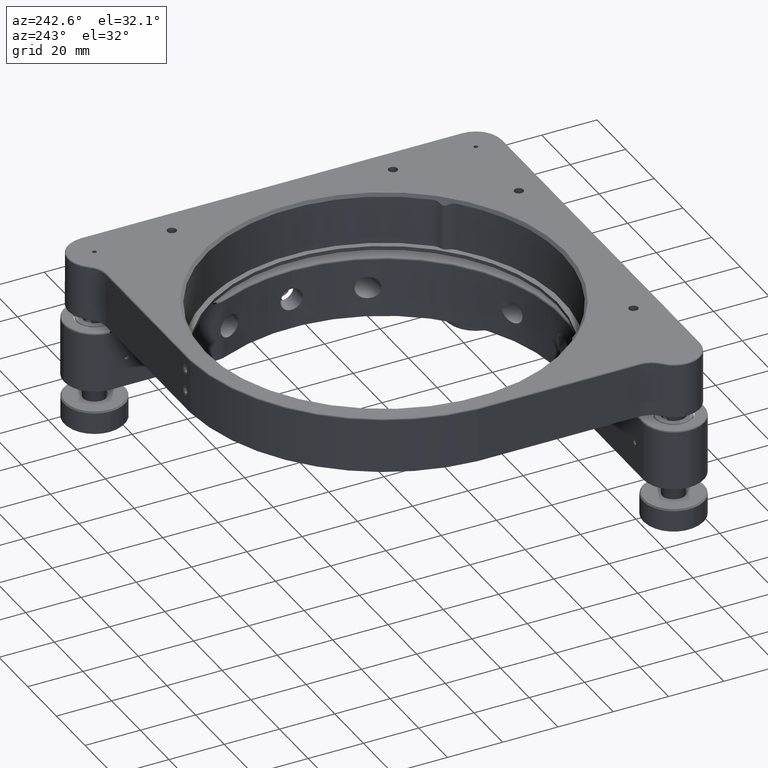
[diagram: clean part render]
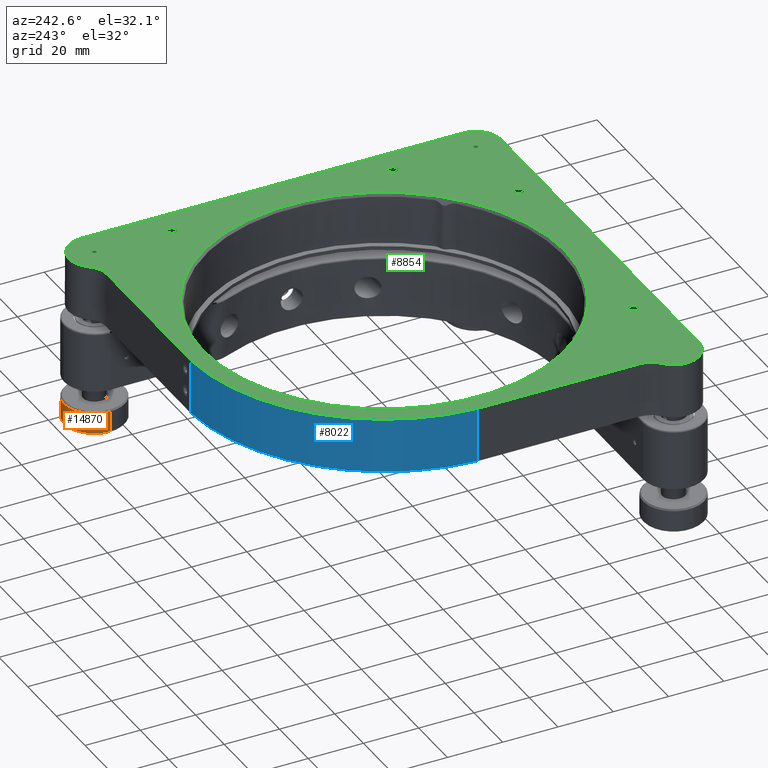
[diagram: same view with three faces highlighted in distinct colors, each labeled with its STEP entity id]
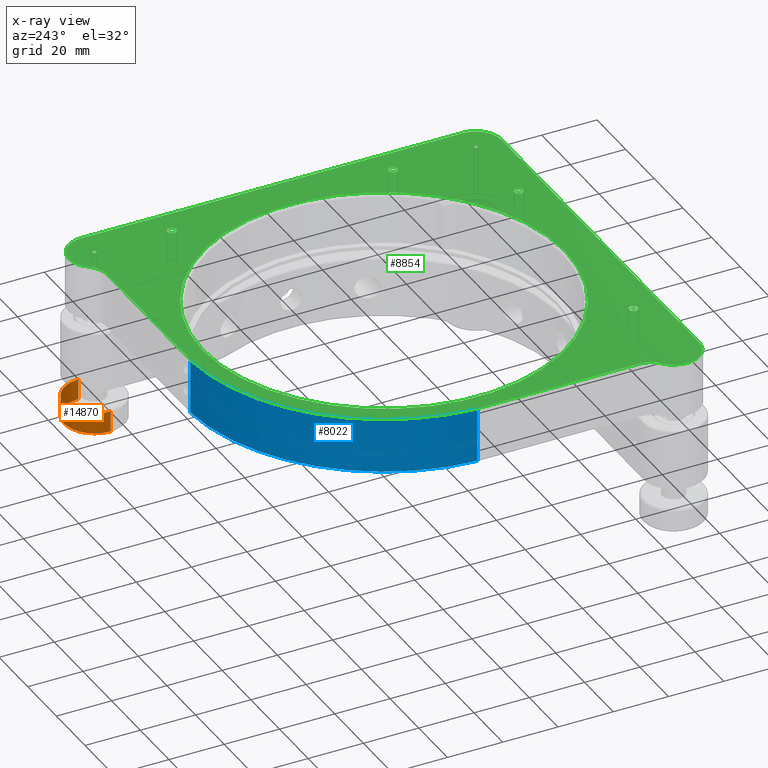
[diagram: x-ray of the same camera — body ghosted, the three highlighted faces saturated]
A machine part, auxiliary view with three faces highlighted in distinct colors.
The next image is the same camera in x-ray (body ghosted, the three faces saturated) — at least one of them is partly hidden behind the body in this view.
Their STEP definitions:

[orange] entity #14870 — the highlighted cylindrical surface (edge-blend (fillet) strip) has radius 11 mm, axis along (0, -0, -1).
#68 = CYLINDRICAL_SURFACE ( 'NONE', #17486, 10.99999999999999822 ) ;
#1095 = EDGE_CURVE ( 'NONE', #4155, #5146, #9262, .T. ) ;
#1386 = CARTESIAN_POINT ( 'NONE',  ( 69.00000000000001421, 69.00000000000001421, -18.60050506338832221 ) ) ;
#1794 = CARTESIAN_POINT ( 'NONE',  ( 69.00000000000001421, 69.00000000000001421, -19.10050506338831511 ) ) ;
#2815 = EDGE_CURVE ( 'NONE', #8294, #4766, #15045, .T. ) ;
#3646 = CARTESIAN_POINT ( 'NONE',  ( 79.99944176882812030, 69.11081865438603700, -18.60050506338832221 ) ) ;
#4155 = VERTEX_POINT ( 'NONE', #18198 ) ;
#4163 = VECTOR ( 'NONE', #17066, 1000.000000000000000 ) ;
#4766 = VERTEX_POINT ( 'NONE', #9754 ) ;
#5146 = VERTEX_POINT ( 'NONE', #10869 ) ;
#5520 = EDGE_CURVE ( 'NONE', #4766, #5146, #12823, .T. ) ;
#5531 = EDGE_CURVE ( 'NONE', #4155, #8294, #15246, .T. ) ;
#5772 = ORIENTED_EDGE ( 'NONE', *, *, #5531, .T. ) ;
#5856 = CARTESIAN_POINT ( 'NONE',  ( 69.00000000000001421, 69.00000000000001421, -26.60050506338831866 ) ) ;
#5916 = AXIS2_PLACEMENT_3D ( 'NONE', #5856, #10275, #15945 ) ;
#7330 = DIRECTION ( 'NONE',  ( -0.9999492517116447265, -0.01007442312600147737, 0.000000000000000000 ) ) ;
#8294 = VERTEX_POINT ( 'NONE', #11284 ) ;
#9262 = LINE ( 'NONE', #14132, #4163 ) ;
#9754 = CARTESIAN_POINT ( 'NONE',  ( 79.99944176882812030, 69.11081865438603700, -26.60050506338831866 ) ) ;
#10275 = DIRECTION ( 'NONE',  ( -9.708507162879141658E-50, 1.405738883550587099E-50, 1.000000000000000000 ) ) ;
#10334 = ORIENTED_EDGE ( 'NONE', *, *, #5520, .T. ) ;
#10476 = DIRECTION ( 'NONE',  ( 9.708507162879141658E-50, -1.405738883550587099E-50, -1.000000000000000000 ) ) ;
#10869 = CARTESIAN_POINT ( 'NONE',  ( 58.00055823117192944, 68.88918134561400564, -26.60050506338831866 ) ) ;
#11284 = CARTESIAN_POINT ( 'NONE',  ( 79.99944176882810609, 69.11081865438603700, -19.10050506338831511 ) ) ;
#11389 = VECTOR ( 'NONE', #16839, 1000.000000000000000 ) ;
#12059 = ORIENTED_EDGE ( 'NONE', *, *, #2815, .T. ) ;
#12823 = CIRCLE ( 'NONE', #5916, 11.00000000000000533 ) ;
#14132 = CARTESIAN_POINT ( 'NONE',  ( 58.00055823117192944, 68.88918134561400564, -18.60050506338832221 ) ) ;
#14493 = DIRECTION ( 'NONE',  ( 9.708507162879141658E-50, -1.405738883550587099E-50, -1.000000000000000000 ) ) ;
#14796 = ORIENTED_EDGE ( 'NONE', *, *, #1095, .F. ) ;
#14870 = ADVANCED_FACE ( 'NONE', ( #17420 ), #68, .T. ) ;
#15045 = LINE ( 'NONE', #3646, #11389 ) ;
#15246 = CIRCLE ( 'NONE', #16766, 11.00000000000000533 ) ;
#15705 = EDGE_LOOP ( 'NONE', ( #5772, #12059, #10334, #14796 ) ) ;
#15945 = DIRECTION ( 'NONE',  ( 0.9999492517116447265, 0.01007442312600147043, 0.000000000000000000 ) ) ;
#16766 = AXIS2_PLACEMENT_3D ( 'NONE', #1794, #10476, #17356 ) ;
#16839 = DIRECTION ( 'NONE',  ( 9.708507162879141658E-50, -1.405738883550587099E-50, -1.000000000000000000 ) ) ;
#17066 = DIRECTION ( 'NONE',  ( 9.708507162879141658E-50, -1.405738883550587099E-50, -1.000000000000000000 ) ) ;
#17356 = DIRECTION ( 'NONE',  ( 0.9999492517116447265, 0.01007442312600147043, 0.000000000000000000 ) ) ;
#17420 = FACE_OUTER_BOUND ( 'NONE', #15705, .T. ) ;
#17486 = AXIS2_PLACEMENT_3D ( 'NONE', #1386, #14493, #7330 ) ;
#18198 = CARTESIAN_POINT ( 'NONE',  ( 58.00055823117193654, 68.88918134561400564, -19.10050506338831511 ) ) ;

[blue] entity #8022 — the highlighted cylindrical surface (partial cylindrical patch) has radius 72 mm, axis along (0, -0, 1).
#100 = DIRECTION ( 'NONE',  ( -6.383782391594642219E-16, 1.000000000000000000, 0.000000000000000000 ) ) ;
#293 = CARTESIAN_POINT ( 'NONE',  ( -2.775557525048464433E-14, -5.551115123125781440E-14, 15.64949493661167423 ) ) ;
#318 = EDGE_LOOP ( 'NONE', ( #5789, #11211, #17670, #8930 ) ) ;
#569 = LINE ( 'NONE', #16419, #1004 ) ;
#1004 = VECTOR ( 'NONE', #9249, 1000.000000000000000 ) ;
#1134 = CARTESIAN_POINT ( 'NONE',  ( -3.500000000000110578, 71.91488024046253713, 35.14949493661170266 ) ) ;
#1251 = VERTEX_POINT ( 'NONE', #1134 ) ;
#1534 = VERTEX_POINT ( 'NONE', #14985 ) ;
#1762 = DIRECTION ( 'NONE',  ( 1.460576560598800264E-21, -4.173910643867654953E-36, 1.000000000000000000 ) ) ;
#1859 = DIRECTION ( 'NONE',  ( -6.383782391594641233E-16, 1.000000000000000000, 0.000000000000000000 ) ) ;
#1997 = CIRCLE ( 'NONE', #11939, 72.00000000000062528 ) ;
#2171 = CIRCLE ( 'NONE', #9410, 72.00000000000062528 ) ;
#3122 = AXIS2_PLACEMENT_3D ( 'NONE', #8939, #1762, #1859 ) ;
#3366 = CARTESIAN_POINT ( 'NONE',  ( -71.91488024046262240, 3.499999999999932498, 35.14949493661170266 ) ) ;
#4598 = FACE_OUTER_BOUND ( 'NONE', #318, .T. ) ;
#5479 = EDGE_CURVE ( 'NONE', #1534, #10999, #1997, .T. ) ;
#5789 = ORIENTED_EDGE ( 'NONE', *, *, #7545, .F. ) ;
#7296 = LINE ( 'NONE', #11456, #16992 ) ;
#7452 = DIRECTION ( 'NONE',  ( 1.460576560598800264E-21, -4.173910643867654953E-36, 1.000000000000000000 ) ) ;
#7545 = EDGE_CURVE ( 'NONE', #1534, #1251, #569, .T. ) ;
#8022 = ADVANCED_FACE ( 'NONE', ( #4598 ), #16111, .T. ) ;
#8051 = VERTEX_POINT ( 'NONE', #3366 ) ;
#8227 = CARTESIAN_POINT ( 'NONE',  ( -71.91488024046262240, 3.499999999999932498, 15.64949493661167423 ) ) ;
#8930 = ORIENTED_EDGE ( 'NONE', *, *, #17503, .T. ) ;
#8939 = CARTESIAN_POINT ( 'NONE',  ( -2.775557561562890089E-14, -5.551115123125781440E-14, 15.39949493661167246 ) ) ;
#9249 = DIRECTION ( 'NONE',  ( 1.460576560598800264E-21, -4.173910643867654953E-36, 1.000000000000000000 ) ) ;
#9410 = AXIS2_PLACEMENT_3D ( 'NONE', #10540, #15245, #18078 ) ;
#10540 = CARTESIAN_POINT ( 'NONE',  ( -2.775554676924171075E-14, -5.551115123125781440E-14, 35.14949493661170266 ) ) ;
#10999 = VERTEX_POINT ( 'NONE', #8227 ) ;
#11211 = ORIENTED_EDGE ( 'NONE', *, *, #5479, .T. ) ;
#11456 = CARTESIAN_POINT ( 'NONE',  ( -71.91488024046262240, 3.499999999999932498, 15.39949493661167246 ) ) ;
#11939 = AXIS2_PLACEMENT_3D ( 'NONE', #293, #7452, #100 ) ;
#12151 = EDGE_CURVE ( 'NONE', #10999, #8051, #7296, .T. ) ;
#14985 = CARTESIAN_POINT ( 'NONE',  ( -3.500000000000110578, 71.91488024046253713, 15.64949493661167423 ) ) ;
#15245 = DIRECTION ( 'NONE',  ( -1.460576560598800264E-21, 4.173910643867654953E-36, -1.000000000000000000 ) ) ;
#16111 = CYLINDRICAL_SURFACE ( 'NONE', #3122, 72.00000000000062528 ) ;
#16419 = CARTESIAN_POINT ( 'NONE',  ( -3.500000000000110578, 71.91488024046253713, 15.39949493661167246 ) ) ;
#16992 = VECTOR ( 'NONE', #17477, 1000.000000000000000 ) ;
#17477 = DIRECTION ( 'NONE',  ( 1.460576560598800264E-21, -4.173910643867654953E-36, 1.000000000000000000 ) ) ;
#17503 = EDGE_CURVE ( 'NONE', #8051, #1251, #2171, .T. ) ;
#17670 = ORIENTED_EDGE ( 'NONE', *, *, #12151, .T. ) ;
#18078 = DIRECTION ( 'NONE',  ( 2.026157019940911081E-15, 1.000000000000000000, 0.000000000000000000 ) ) ;

[green] entity #8854 — the highlighted planar face has unit normal (0, 0, 1).
#81 = VECTOR ( 'NONE', #16738, 1000.000000000000000 ) ;
#146 = CIRCLE ( 'NONE', #2555, 8.250000000000076383 ) ;
#191 = ORIENTED_EDGE ( 'NONE', *, *, #17462, .T. ) ;
#204 = CARTESIAN_POINT ( 'NONE',  ( -41.00000000000024869, -67.35000000000063380, 35.39949493661167423 ) ) ;
#348 = AXIS2_PLACEMENT_3D ( 'NONE', #16208, #456, #3277 ) ;
#380 = CARTESIAN_POINT ( 'NONE',  ( -2.775554640409757094E-14, -5.551115123125781440E-14, 35.39949493661167423 ) ) ;
#452 = CARTESIAN_POINT ( 'NONE',  ( -3.500000000000110134, 71.66488024046253713, 35.39949493661167423 ) ) ;
#456 = DIRECTION ( 'NONE',  ( -1.460576560598800264E-21, 4.173910643867654953E-36, -1.000000000000000000 ) ) ;
#477 = DIRECTION ( 'NONE',  ( 0.000000000000000000, 1.000000000000000000, 0.000000000000000000 ) ) ;
#568 = CARTESIAN_POINT ( 'NONE',  ( -69.00000000000052580, -78.25000000000063949, 35.39949493661167423 ) ) ;
#683 = CIRCLE ( 'NONE', #11220, 1.650000000000012568 ) ;
#769 = CIRCLE ( 'NONE', #2870, 1.650000000000012568 ) ;
#846 = DIRECTION ( 'NONE',  ( 0.000000000000000000, 1.000000000000000000, 0.000000000000000000 ) ) ;
#859 = VERTEX_POINT ( 'NONE', #10820 ) ;
#950 = VERTEX_POINT ( 'NONE', #17838 ) ;
#1145 = FACE_BOUND ( 'NONE', #5126, .T. ) ;
#1334 = VERTEX_POINT ( 'NONE', #11969 ) ;
#1569 = LINE ( 'NONE', #452, #9393 ) ;
#1585 = LINE ( 'NONE', #16930, #13495 ) ;
#1605 = DIRECTION ( 'NONE',  ( -1.460576560598800264E-21, 4.173910643867654953E-36, -1.000000000000000000 ) ) ;
#1633 = ORIENTED_EDGE ( 'NONE', *, *, #3185, .T. ) ;
#1885 = CARTESIAN_POINT ( 'NONE',  ( 69.00000000000055422, -69.00000000000055422, 35.39949493661167423 ) ) ;
#1888 = CARTESIAN_POINT ( 'NONE',  ( 69.00000000000049738, 69.00000000000054001, 35.39949493661167423 ) ) ;
#1975 = DIRECTION ( 'NONE',  ( 1.460576560598800264E-21, -4.173910643867654953E-36, 1.000000000000000000 ) ) ;
#1980 = EDGE_LOOP ( 'NONE', ( #5314, #12719 ) ) ;
#2205 = CARTESIAN_POINT ( 'NONE',  ( 69.00000000000048317, 69.00000000000054001, 35.39949493661167423 ) ) ;
#2284 = DIRECTION ( 'NONE',  ( 1.460576560598800264E-21, -4.173910643867654953E-36, 1.000000000000000000 ) ) ;
#2326 = AXIS2_PLACEMENT_3D ( 'NONE', #13227, #11825, #8906 ) ;
#2371 = EDGE_CURVE ( 'NONE', #15416, #8586, #18308, .T. ) ;
#2555 = AXIS2_PLACEMENT_3D ( 'NONE', #11745, #4483, #3348 ) ;
#2869 = ORIENTED_EDGE ( 'NONE', *, *, #13683, .T. ) ;
#2870 = AXIS2_PLACEMENT_3D ( 'NONE', #8198, #16789, #13946 ) ;
#2961 = DIRECTION ( 'NONE',  ( 0.000000000000000000, 1.000000000000000000, 0.000000000000000000 ) ) ;
#3108 = CARTESIAN_POINT ( 'NONE',  ( 69.00000000000054001, -37.35000000000030695, 35.39949493661167423 ) ) ;
#3153 = DIRECTION ( 'NONE',  ( 1.460576560598800264E-21, -4.173910643867654953E-36, 1.000000000000000000 ) ) ;
#3176 = ORIENTED_EDGE ( 'NONE', *, *, #6272, .T. ) ;
#3185 = EDGE_CURVE ( 'NONE', #14678, #12587, #1585, .T. ) ;
#3277 = DIRECTION ( 'NONE',  ( -1.682156097916888353E-15, 1.000000000000000000, 0.000000000000000000 ) ) ;
#3316 = CIRCLE ( 'NONE', #13858, 9.250000000000078160 ) ;
#3348 = DIRECTION ( 'NONE',  ( -4.205390244792220586E-15, 1.000000000000000000, 0.000000000000000000 ) ) ;
#3371 = VERTEX_POINT ( 'NONE', #7113 ) ;
#3519 = DIRECTION ( 'NONE',  ( 0.000000000000000000, 1.000000000000000000, 0.000000000000000000 ) ) ;
#3627 = EDGE_CURVE ( 'NONE', #14491, #17118, #5347, .T. ) ;
#3688 = CARTESIAN_POINT ( 'NONE',  ( 69.00000000000055422, -69.00000000000055422, 35.39949493661167423 ) ) ;
#3696 = AXIS2_PLACEMENT_3D ( 'NONE', #8715, #14114, #14657 ) ;
#3776 = CARTESIAN_POINT ( 'NONE',  ( -6.956932106904283837E-14, 65.50000000000051159, 35.39949493661167423 ) ) ;
#4071 = CARTESIAN_POINT ( 'NONE',  ( -2.775554640409757094E-14, -5.551115123125781440E-14, 35.39949493661167423 ) ) ;
#4218 = DIRECTION ( 'NONE',  ( -1.460576560598800264E-21, 4.173910643867654953E-36, -1.000000000000000000 ) ) ;
#4241 = VERTEX_POINT ( 'NONE', #15903 ) ;
#4267 = ORIENTED_EDGE ( 'NONE', *, *, #9094, .T. ) ;
#4318 = EDGE_CURVE ( 'NONE', #12494, #5462, #769, .T. ) ;
#4430 = DIRECTION ( 'NONE',  ( -6.383782391594642219E-16, 1.000000000000000000, 0.000000000000000000 ) ) ;
#4483 = DIRECTION ( 'NONE',  ( -1.460576560598800264E-21, 4.173910643867654953E-36, -1.000000000000000000 ) ) ;
#4662 = AXIS2_PLACEMENT_3D ( 'NONE', #9591, #17988, #9318 ) ;
#4855 = DIRECTION ( 'NONE',  ( 1.460576560598800264E-21, 2.849361783201482144E-36, 1.000000000000000000 ) ) ;
#5126 = EDGE_LOOP ( 'NONE', ( #13743, #5685 ) ) ;
#5138 = CIRCLE ( 'NONE', #15680, 1.650000000000012568 ) ;
#5154 = VECTOR ( 'NONE', #5339, 1000.000000000000000 ) ;
#5216 = CARTESIAN_POINT ( 'NONE',  ( -69.00000000000054001, -69.00000000000063949, 35.39949493661167423 ) ) ;
#5249 = VERTEX_POINT ( 'NONE', #8589 ) ;
#5314 = ORIENTED_EDGE ( 'NONE', *, *, #6033, .F. ) ;
#5325 = CARTESIAN_POINT ( 'NONE',  ( 69.00000000000048317, 68.25000000000052580, 35.39949493661167423 ) ) ;
#5330 = ORIENTED_EDGE ( 'NONE', *, *, #3627, .F. ) ;
#5339 = DIRECTION ( 'NONE',  ( 6.383782391594642219E-16, -1.000000000000000000, 1.916961490288833203E-36 ) ) ;
#5347 = CIRCLE ( 'NONE', #2326, 65.50000000000056843 ) ;
#5403 = CARTESIAN_POINT ( 'NONE',  ( 69.00000000000051159, 39.35000000000022169, 35.39949493661167423 ) ) ;
#5462 = VERTEX_POINT ( 'NONE', #14720 ) ;
#5476 = FACE_BOUND ( 'NONE', #16416, .T. ) ;
#5685 = ORIENTED_EDGE ( 'NONE', *, *, #6330, .F. ) ;
#5728 = ORIENTED_EDGE ( 'NONE', *, *, #16021, .T. ) ;
#5740 = EDGE_CURVE ( 'NONE', #5462, #12494, #14039, .T. ) ;
#5785 = CARTESIAN_POINT ( 'NONE',  ( -71.66488024046257976, -55.32098726748333206, 35.39949493661167423 ) ) ;
#5810 = AXIS2_PLACEMENT_3D ( 'NONE', #2205, #9103, #7682 ) ;
#6033 = EDGE_CURVE ( 'NONE', #950, #14934, #15436, .T. ) ;
#6136 = DIRECTION ( 'NONE',  ( 1.460576560598800264E-21, -4.173910643867654953E-36, 1.000000000000000000 ) ) ;
#6202 = CARTESIAN_POINT ( 'NONE',  ( -41.00000000000024869, -69.00000000000062528, 35.39949493661167423 ) ) ;
#6223 = CARTESIAN_POINT ( 'NONE',  ( 6.036791726432466988E-15, -65.50000000000062528, 35.39949493661167423 ) ) ;
#6272 = EDGE_CURVE ( 'NONE', #8586, #15416, #15120, .T. ) ;
#6299 = ORIENTED_EDGE ( 'NONE', *, *, #10195, .T. ) ;
#6330 = EDGE_CURVE ( 'NONE', #10332, #4241, #10288, .T. ) ;
#6362 = FACE_BOUND ( 'NONE', #8600, .T. ) ;
#6546 = EDGE_CURVE ( 'NONE', #4241, #10332, #13633, .T. ) ;
#6667 = EDGE_CURVE ( 'NONE', #16513, #859, #10976, .T. ) ;
#6710 = CARTESIAN_POINT ( 'NONE',  ( 39.00000000000029132, -70.65000000000058833, 35.39949493661167423 ) ) ;
#6796 = EDGE_CURVE ( 'NONE', #12840, #8784, #683, .T. ) ;
#7027 = CIRCLE ( 'NONE', #7634, 9.250000000000078160 ) ;
#7113 = CARTESIAN_POINT ( 'NONE',  ( 61.76966469852704478, 74.76929384138760781, 35.39949493661167423 ) ) ;
#7151 = AXIS2_PLACEMENT_3D ( 'NONE', #10053, #4218, #13067 ) ;
#7359 = DIRECTION ( 'NONE',  ( 0.000000000000000000, -1.000000000000000000, 0.000000000000000000 ) ) ;
#7442 = DIRECTION ( 'NONE',  ( 0.000000000000000000, 1.000000000000000000, 0.000000000000000000 ) ) ;
#7448 = CARTESIAN_POINT ( 'NONE',  ( 69.00000000000051159, 41.00000000000023448, 35.39949493661167423 ) ) ;
#7634 = AXIS2_PLACEMENT_3D ( 'NONE', #1888, #11889, #10753 ) ;
#7682 = DIRECTION ( 'NONE',  ( 0.000000000000000000, 1.000000000000000000, 0.000000000000000000 ) ) ;
#7895 = DIRECTION ( 'NONE',  ( 0.000000000000000000, -1.000000000000000000, 0.000000000000000000 ) ) ;
#8198 = CARTESIAN_POINT ( 'NONE',  ( 69.00000000000051159, 41.00000000000023448, 35.39949493661167423 ) ) ;
#8217 = EDGE_CURVE ( 'NONE', #17208, #14962, #17894, .T. ) ;
#8403 = FACE_BOUND ( 'NONE', #1980, .T. ) ;
#8476 = CIRCLE ( 'NONE', #348, 8.250000000000076383 ) ;
#8514 = DIRECTION ( 'NONE',  ( 0.000000000000000000, -1.000000000000000000, 0.000000000000000000 ) ) ;
#8586 = VERTEX_POINT ( 'NONE', #12022 ) ;
#8589 = CARTESIAN_POINT ( 'NONE',  ( -71.66488024046262240, 3.493914727097752415, 35.39949493661167423 ) ) ;
#8598 = CARTESIAN_POINT ( 'NONE',  ( 69.00000000000058265, -78.25000000000055422, 35.39949493661167423 ) ) ;
#8600 = EDGE_LOOP ( 'NONE', ( #15193, #5330 ) ) ;
#8642 = EDGE_LOOP ( 'NONE', ( #6299, #9013, #15562, #10724, #191, #2869, #1633, #13839, #15911, #4267 ) ) ;
#8652 = CARTESIAN_POINT ( 'NONE',  ( -41.00000000000024869, -70.65000000000064517, 35.39949493661167423 ) ) ;
#8712 = ORIENTED_EDGE ( 'NONE', *, *, #8217, .T. ) ;
#8715 = CARTESIAN_POINT ( 'NONE',  ( 69.00000000000054001, -39.00000000000030553, 35.39949493661167423 ) ) ;
#8784 = VERTEX_POINT ( 'NONE', #6710 ) ;
#8816 = AXIS2_PLACEMENT_3D ( 'NONE', #4071, #4855, #9814 ) ;
#8854 = ADVANCED_FACE ( 'NONE', ( #1145, #8403, #18398, #6362, #18219, #12116, #17870, #5476 ), #15289, .T. ) ;
#8859 = AXIS2_PLACEMENT_3D ( 'NONE', #15055, #9494, #7895 ) ;
#8906 = DIRECTION ( 'NONE',  ( -6.383782391594642219E-16, 1.000000000000000000, 0.000000000000000000 ) ) ;
#8960 = CARTESIAN_POINT ( 'NONE',  ( 69.00000000000055422, -69.00000000000055422, 35.39949493661167423 ) ) ;
#8982 = CARTESIAN_POINT ( 'NONE',  ( 69.00000000000055422, -69.75000000000056843, 35.39949493661167423 ) ) ;
#9013 = ORIENTED_EDGE ( 'NONE', *, *, #15788, .T. ) ;
#9094 = EDGE_CURVE ( 'NONE', #859, #3371, #7027, .T. ) ;
#9103 = DIRECTION ( 'NONE',  ( 1.460576560598800264E-21, -4.173910643867654953E-36, 1.000000000000000000 ) ) ;
#9307 = EDGE_LOOP ( 'NONE', ( #3176, #15766 ) ) ;
#9318 = DIRECTION ( 'NONE',  ( -6.383782391594642219E-16, 1.000000000000000000, 0.000000000000000000 ) ) ;
#9393 = VECTOR ( 'NONE', #16294, 1000.000000000000000 ) ;
#9408 = AXIS2_PLACEMENT_3D ( 'NONE', #14465, #3153, #2961 ) ;
#9494 = DIRECTION ( 'NONE',  ( -1.460576560598800264E-21, 4.173910643867654953E-36, -1.000000000000000000 ) ) ;
#9554 = EDGE_LOOP ( 'NONE', ( #8712, #16981 ) ) ;
#9574 = VERTEX_POINT ( 'NONE', #11403 ) ;
#9591 = CARTESIAN_POINT ( 'NONE',  ( -2.775554640409757094E-14, -5.551115123125781440E-14, 35.39949493661167423 ) ) ;
#9675 = CARTESIAN_POINT ( 'NONE',  ( -71.66488024046257976, -55.32098726748333206, 35.39949493661167423 ) ) ;
#9814 = DIRECTION ( 'NONE',  ( -6.383782391594642219E-16, 1.000000000000000000, -1.916961490288833537E-36 ) ) ;
#9886 = EDGE_CURVE ( 'NONE', #17118, #14491, #12479, .T. ) ;
#10053 = CARTESIAN_POINT ( 'NONE',  ( 69.00000000000054001, -39.00000000000030553, 35.39949493661167423 ) ) ;
#10193 = DIRECTION ( 'NONE',  ( -1.460576560598800264E-21, 4.173910643867654953E-36, -1.000000000000000000 ) ) ;
#10195 = EDGE_CURVE ( 'NONE', #3371, #1334, #146, .T. ) ;
#10288 = CIRCLE ( 'NONE', #9408, 0.7500000000000006661 ) ;
#10332 = VERTEX_POINT ( 'NONE', #5325 ) ;
#10513 = CARTESIAN_POINT ( 'NONE',  ( 78.25000000000055422, -69.00000000000054001, 35.39949493661167423 ) ) ;
#10524 = VERTEX_POINT ( 'NONE', #5785 ) ;
#10724 = ORIENTED_EDGE ( 'NONE', *, *, #16244, .T. ) ;
#10732 = AXIS2_PLACEMENT_3D ( 'NONE', #7448, #1605, #7359 ) ;
#10753 = DIRECTION ( 'NONE',  ( 0.000000000000000000, 1.000000000000000000, 0.000000000000000000 ) ) ;
#10820 = CARTESIAN_POINT ( 'NONE',  ( 78.25000000000046896, 69.00000000000055422, 35.39949493661167423 ) ) ;
#10876 = AXIS2_PLACEMENT_3D ( 'NONE', #1885, #17257, #477 ) ;
#10951 = ORIENTED_EDGE ( 'NONE', *, *, #5740, .T. ) ;
#10976 = LINE ( 'NONE', #18047, #81 ) ;
#11220 = AXIS2_PLACEMENT_3D ( 'NONE', #18515, #10193, #8514 ) ;
#11403 = CARTESIAN_POINT ( 'NONE',  ( -3.493914727097930051, 71.66488024046253713, 35.39949493661167423 ) ) ;
#11554 = ORIENTED_EDGE ( 'NONE', *, *, #4318, .T. ) ;
#11745 = CARTESIAN_POINT ( 'NONE',  ( 55.32098726748316153, 79.91488024046259397, 35.39949493661167423 ) ) ;
#11825 = DIRECTION ( 'NONE',  ( 1.460576560598800264E-21, -4.173910643867654953E-36, 1.000000000000000000 ) ) ;
#11889 = DIRECTION ( 'NONE',  ( 1.460576560598800264E-21, -4.173910643867654953E-36, 1.000000000000000000 ) ) ;
#11969 = CARTESIAN_POINT ( 'NONE',  ( 55.32098726748316153, 71.66488024046257976, 35.39949493661167423 ) ) ;
#12022 = CARTESIAN_POINT ( 'NONE',  ( 69.00000000000054001, -40.65000000000031832, 35.39949493661167423 ) ) ;
#12075 = DIRECTION ( 'NONE',  ( 1.460576560598800264E-21, -4.173910643867654953E-36, 1.000000000000000000 ) ) ;
#12116 = FACE_BOUND ( 'NONE', #15798, .T. ) ;
#12138 = CARTESIAN_POINT ( 'NONE',  ( 39.00000000000029132, -69.00000000000056843, 35.39949493661167423 ) ) ;
#12219 = ORIENTED_EDGE ( 'NONE', *, *, #6796, .T. ) ;
#12393 = CIRCLE ( 'NONE', #17536, 1.650000000000012568 ) ;
#12479 = CIRCLE ( 'NONE', #4662, 65.50000000000056843 ) ;
#12494 = VERTEX_POINT ( 'NONE', #5403 ) ;
#12587 = VERTEX_POINT ( 'NONE', #8598 ) ;
#12719 = ORIENTED_EDGE ( 'NONE', *, *, #14485, .F. ) ;
#12840 = VERTEX_POINT ( 'NONE', #14915 ) ;
#13067 = DIRECTION ( 'NONE',  ( 0.000000000000000000, -1.000000000000000000, 0.000000000000000000 ) ) ;
#13227 = CARTESIAN_POINT ( 'NONE',  ( -2.775554640409757094E-14, -5.551115123125781440E-14, 35.39949493661167423 ) ) ;
#13274 = CIRCLE ( 'NONE', #15695, 71.75000000000062528 ) ;
#13495 = VECTOR ( 'NONE', #17906, 1000.000000000000000 ) ;
#13588 = CIRCLE ( 'NONE', #10876, 0.7500000000000006661 ) ;
#13633 = CIRCLE ( 'NONE', #5810, 0.7500000000000006661 ) ;
#13683 = EDGE_CURVE ( 'NONE', #16709, #14678, #3316, .T. ) ;
#13743 = ORIENTED_EDGE ( 'NONE', *, *, #6546, .F. ) ;
#13839 = ORIENTED_EDGE ( 'NONE', *, *, #15314, .T. ) ;
#13858 = AXIS2_PLACEMENT_3D ( 'NONE', #5216, #2284, #3519 ) ;
#13893 = CARTESIAN_POINT ( 'NONE',  ( -74.76929384138762202, -61.76966469852721531, 35.39949493661167423 ) ) ;
#13946 = DIRECTION ( 'NONE',  ( 0.000000000000000000, -1.000000000000000000, 0.000000000000000000 ) ) ;
#14039 = CIRCLE ( 'NONE', #10732, 1.650000000000012568 ) ;
#14114 = DIRECTION ( 'NONE',  ( -1.460576560598800264E-21, 4.173910643867654953E-36, -1.000000000000000000 ) ) ;
#14396 = EDGE_CURVE ( 'NONE', #9574, #5249, #13274, .T. ) ;
#14465 = CARTESIAN_POINT ( 'NONE',  ( 69.00000000000048317, 69.00000000000054001, 35.39949493661167423 ) ) ;
#14485 = EDGE_CURVE ( 'NONE', #14934, #950, #13588, .T. ) ;
#14491 = VERTEX_POINT ( 'NONE', #6223 ) ;
#14657 = DIRECTION ( 'NONE',  ( 0.000000000000000000, -1.000000000000000000, 0.000000000000000000 ) ) ;
#14678 = VERTEX_POINT ( 'NONE', #568 ) ;
#14720 = CARTESIAN_POINT ( 'NONE',  ( 69.00000000000051159, 42.65000000000023306, 35.39949493661167423 ) ) ;
#14783 = DIRECTION ( 'NONE',  ( 0.000000000000000000, -1.000000000000000000, 0.000000000000000000 ) ) ;
#14803 = AXIS2_PLACEMENT_3D ( 'NONE', #8960, #1975, #7442 ) ;
#14915 = CARTESIAN_POINT ( 'NONE',  ( 39.00000000000029132, -67.35000000000057696, 35.39949493661167423 ) ) ;
#14934 = VERTEX_POINT ( 'NONE', #8982 ) ;
#14962 = VERTEX_POINT ( 'NONE', #204 ) ;
#15055 = CARTESIAN_POINT ( 'NONE',  ( -41.00000000000024869, -69.00000000000062528, 35.39949493661167423 ) ) ;
#15120 = CIRCLE ( 'NONE', #3696, 1.650000000000012568 ) ;
#15193 = ORIENTED_EDGE ( 'NONE', *, *, #9886, .F. ) ;
#15289 = PLANE ( 'NONE',  #8816 ) ;
#15314 = EDGE_CURVE ( 'NONE', #12587, #16513, #15404, .T. ) ;
#15404 = CIRCLE ( 'NONE', #14803, 9.250000000000078160 ) ;
#15416 = VERTEX_POINT ( 'NONE', #3108 ) ;
#15436 = CIRCLE ( 'NONE', #17235, 0.7500000000000006661 ) ;
#15562 = ORIENTED_EDGE ( 'NONE', *, *, #14396, .T. ) ;
#15616 = LINE ( 'NONE', #9675, #5154 ) ;
#15680 = AXIS2_PLACEMENT_3D ( 'NONE', #12138, #16397, #16669 ) ;
#15695 = AXIS2_PLACEMENT_3D ( 'NONE', #380, #6136, #4430 ) ;
#15766 = ORIENTED_EDGE ( 'NONE', *, *, #2371, .T. ) ;
#15788 = EDGE_CURVE ( 'NONE', #1334, #9574, #1569, .T. ) ;
#15798 = EDGE_LOOP ( 'NONE', ( #5728, #12219 ) ) ;
#15903 = CARTESIAN_POINT ( 'NONE',  ( 69.00000000000048317, 69.75000000000054001, 35.39949493661167423 ) ) ;
#15911 = ORIENTED_EDGE ( 'NONE', *, *, #6667, .T. ) ;
#16021 = EDGE_CURVE ( 'NONE', #8784, #12840, #5138, .T. ) ;
#16114 = DIRECTION ( 'NONE',  ( -1.460576560598800264E-21, 4.173910643867654953E-36, -1.000000000000000000 ) ) ;
#16208 = CARTESIAN_POINT ( 'NONE',  ( -79.91488024046259397, -55.32098726748333206, 35.39949493661167423 ) ) ;
#16244 = EDGE_CURVE ( 'NONE', #5249, #10524, #15616, .T. ) ;
#16294 = DIRECTION ( 'NONE',  ( -1.000000000000000000, -6.383782391594642219E-16, 1.460576560598808539E-21 ) ) ;
#16397 = DIRECTION ( 'NONE',  ( -1.460576560598800264E-21, 4.173910643867654953E-36, -1.000000000000000000 ) ) ;
#16416 = EDGE_LOOP ( 'NONE', ( #11554, #10951 ) ) ;
#16513 = VERTEX_POINT ( 'NONE', #10513 ) ;
#16669 = DIRECTION ( 'NONE',  ( 0.000000000000000000, -1.000000000000000000, 0.000000000000000000 ) ) ;
#16709 = VERTEX_POINT ( 'NONE', #13893 ) ;
#16738 = DIRECTION ( 'NONE',  ( -6.383782391594642219E-16, 1.000000000000000000, -1.916961490288833203E-36 ) ) ;
#16789 = DIRECTION ( 'NONE',  ( -1.460576560598800264E-21, 4.173910643867654953E-36, -1.000000000000000000 ) ) ;
#16930 = CARTESIAN_POINT ( 'NONE',  ( 69.00000000000058265, -78.25000000000055422, 35.39949493661167423 ) ) ;
#16981 = ORIENTED_EDGE ( 'NONE', *, *, #17484, .T. ) ;
#17118 = VERTEX_POINT ( 'NONE', #3776 ) ;
#17208 = VERTEX_POINT ( 'NONE', #8652 ) ;
#17235 = AXIS2_PLACEMENT_3D ( 'NONE', #3688, #12075, #846 ) ;
#17257 = DIRECTION ( 'NONE',  ( 1.460576560598800264E-21, -4.173910643867654953E-36, 1.000000000000000000 ) ) ;
#17462 = EDGE_CURVE ( 'NONE', #10524, #16709, #8476, .T. ) ;
#17484 = EDGE_CURVE ( 'NONE', #14962, #17208, #12393, .T. ) ;
#17536 = AXIS2_PLACEMENT_3D ( 'NONE', #6202, #16114, #14783 ) ;
#17838 = CARTESIAN_POINT ( 'NONE',  ( 69.00000000000055422, -68.25000000000055422, 35.39949493661167423 ) ) ;
#17870 = FACE_BOUND ( 'NONE', #9307, .T. ) ;
#17894 = CIRCLE ( 'NONE', #8859, 1.650000000000012568 ) ;
#17906 = DIRECTION ( 'NONE',  ( 1.000000000000000000, 6.383782391594642219E-16, -1.460576560598808539E-21 ) ) ;
#17988 = DIRECTION ( 'NONE',  ( 1.460576560598800264E-21, -4.173910643867654953E-36, 1.000000000000000000 ) ) ;
#18047 = CARTESIAN_POINT ( 'NONE',  ( 78.25000000000046896, 69.00000000000055422, 35.39949493661167423 ) ) ;
#18219 = FACE_BOUND ( 'NONE', #9554, .T. ) ;
#18308 = CIRCLE ( 'NONE', #7151, 1.650000000000012568 ) ;
#18398 = FACE_OUTER_BOUND ( 'NONE', #8642, .T. ) ;
#18515 = CARTESIAN_POINT ( 'NONE',  ( 39.00000000000029132, -69.00000000000056843, 35.39949493661167423 ) ) ;